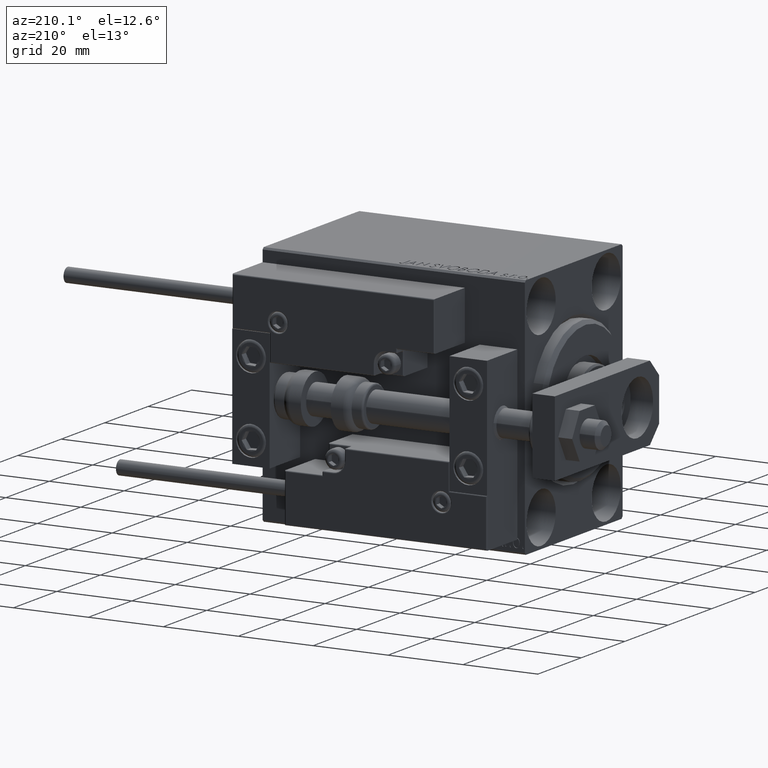
[diagram: clean part render]
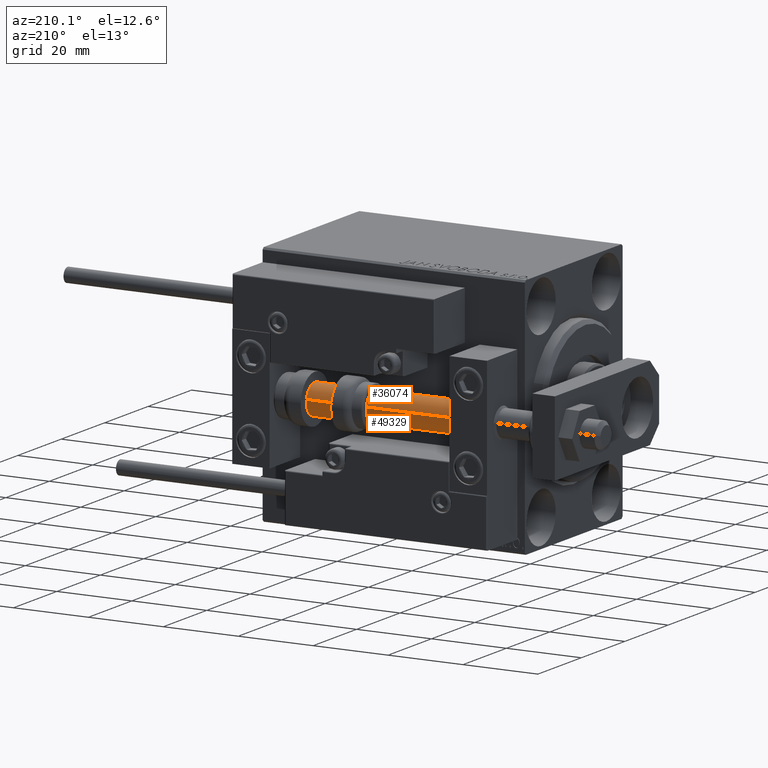
[diagram: same view with one multi-face feature highlighted, each face labeled with its STEP entity id]
A machine part, auxiliary view. The highlighted faces form ONE feature: a constant-radius fillet chain: 2 tangent blend faces with common blend radius 4 mm. The faces share edges in the B-rep.
Their STEP definitions:
[1] entity #36074 (Cylinder):
#150 = CARTESIAN_POINT ( 'NONE',  ( -4.000000000000000000, 0.000000000000000000, 2.000000000000029310 ) ) ;
#1936 = CARTESIAN_POINT ( 'NONE',  ( 0.000000000000000000, 0.000000000000000000, 70.00000000000000000 ) ) ;
#1945 = DIRECTION ( 'NONE',  ( -0.000000000000000000, -0.000000000000000000, -1.000000000000000000 ) ) ;
#5325 = EDGE_LOOP ( 'NONE', ( #43047, #48618, #14084, #49343 ) ) ;
#5996 = DIRECTION ( 'NONE',  ( 1.000000000000000000, 0.000000000000000000, 0.000000000000000000 ) ) ;
#9677 = DIRECTION ( 'NONE',  ( -1.000000000000000000, 0.000000000000000000, 0.000000000000000000 ) ) ;
#12072 = LINE ( 'NONE', #15633, #30948 ) ;
#13382 = AXIS2_PLACEMENT_3D ( 'NONE', #1936, #25589, #5996 ) ;
#13456 = EDGE_CURVE ( 'NONE', #47709, #35734, #18348, .T. ) ;
#14084 = ORIENTED_EDGE ( 'NONE', *, *, #13456, .T. ) ;
#15633 = CARTESIAN_POINT ( 'NONE',  ( -4.000000000000000000, 0.000000000000000000, 70.00000000000000000 ) ) ;
#15876 = AXIS2_PLACEMENT_3D ( 'NONE', #41964, #27198, #30783 ) ;
#17564 = CYLINDRICAL_SURFACE ( 'NONE', #42666, 4.000000000000000000 ) ;
#17728 = LINE ( 'NONE', #37044, #28191 ) ;
#18348 = CIRCLE ( 'NONE', #15876, 4.000000000000000000 ) ;
#25529 = EDGE_CURVE ( 'NONE', #34346, #35734, #12072, .T. ) ;
#25589 = DIRECTION ( 'NONE',  ( 0.000000000000000000, 0.000000000000000000, 1.000000000000000000 ) ) ;
#26838 = DIRECTION ( 'NONE',  ( -0.000000000000000000, -0.000000000000000000, -1.000000000000000000 ) ) ;
#27044 = VERTEX_POINT ( 'NONE', #39080 ) ;
#27186 = CIRCLE ( 'NONE', #13382, 4.000000000000000000 ) ;
#27198 = DIRECTION ( 'NONE',  ( -0.000000000000000000, -0.000000000000000000, 1.000000000000000000 ) ) ;
#28191 = VECTOR ( 'NONE', #1945, 1000.000000000000000 ) ;
#30028 = FACE_OUTER_BOUND ( 'NONE', #5325, .T. ) ;
#30783 = DIRECTION ( 'NONE',  ( 1.000000000000000000, 0.000000000000000000, 0.000000000000000000 ) ) ;
#30948 = VECTOR ( 'NONE', #26838, 1000.000000000000000 ) ;
#33067 = DIRECTION ( 'NONE',  ( -0.000000000000000000, -0.000000000000000000, -1.000000000000000000 ) ) ;
#33562 = CARTESIAN_POINT ( 'NONE',  ( 0.000000000000000000, 0.000000000000000000, 70.00000000000000000 ) ) ;
#34346 = VERTEX_POINT ( 'NONE', #46297 ) ;
#35734 = VERTEX_POINT ( 'NONE', #150 ) ;
#36074 = ADVANCED_FACE ( 'NONE', ( #30028 ), #17564, .T. ) ;
#37044 = CARTESIAN_POINT ( 'NONE',  ( 4.000000000000000000, 4.898587196589412829E-16, 70.00000000000000000 ) ) ;
#38047 = EDGE_CURVE ( 'NONE', #27044, #34346, #27186, .T. ) ;
#39078 = CARTESIAN_POINT ( 'NONE',  ( 4.000000000000000000, 4.898587196589412829E-16, 2.000000000000029310 ) ) ;
#39080 = CARTESIAN_POINT ( 'NONE',  ( 4.000000000000000000, 4.898587196589412829E-16, 70.00000000000000000 ) ) ;
#41964 = CARTESIAN_POINT ( 'NONE',  ( 0.000000000000000000, 0.000000000000000000, 2.000000000000029310 ) ) ;
#42666 = AXIS2_PLACEMENT_3D ( 'NONE', #33562, #33067, #9677 ) ;
#42829 = EDGE_CURVE ( 'NONE', #27044, #47709, #17728, .T. ) ;
#43047 = ORIENTED_EDGE ( 'NONE', *, *, #38047, .F. ) ;
#46297 = CARTESIAN_POINT ( 'NONE',  ( -4.000000000000000000, 0.000000000000000000, 70.00000000000000000 ) ) ;
#47709 = VERTEX_POINT ( 'NONE', #39078 ) ;
#48618 = ORIENTED_EDGE ( 'NONE', *, *, #42829, .T. ) ;
#49343 = ORIENTED_EDGE ( 'NONE', *, *, #25529, .F. ) ;
[2] entity #49329 (Cylinder):
#150 = CARTESIAN_POINT ( 'NONE',  ( -4.000000000000000000, 0.000000000000000000, 2.000000000000029310 ) ) ;
#1945 = DIRECTION ( 'NONE',  ( -0.000000000000000000, -0.000000000000000000, -1.000000000000000000 ) ) ;
#6321 = DIRECTION ( 'NONE',  ( 0.000000000000000000, 0.000000000000000000, 1.000000000000000000 ) ) ;
#6773 = CIRCLE ( 'NONE', #27089, 4.000000000000000000 ) ;
#12014 = DIRECTION ( 'NONE',  ( -1.000000000000000000, 0.000000000000000000, 0.000000000000000000 ) ) ;
#12072 = LINE ( 'NONE', #15633, #30948 ) ;
#12848 = DIRECTION ( 'NONE',  ( 1.000000000000000000, 0.000000000000000000, 0.000000000000000000 ) ) ;
#13703 = DIRECTION ( 'NONE',  ( 1.000000000000000000, 0.000000000000000000, 0.000000000000000000 ) ) ;
#15633 = CARTESIAN_POINT ( 'NONE',  ( -4.000000000000000000, 0.000000000000000000, 70.00000000000000000 ) ) ;
#16483 = AXIS2_PLACEMENT_3D ( 'NONE', #31677, #31432, #12848 ) ;
#17728 = LINE ( 'NONE', #37044, #28191 ) ;
#18075 = ORIENTED_EDGE ( 'NONE', *, *, #30393, .T. ) ;
#18107 = CIRCLE ( 'NONE', #16483, 4.000000000000000000 ) ;
#25101 = AXIS2_PLACEMENT_3D ( 'NONE', #34400, #35145, #12014 ) ;
#25529 = EDGE_CURVE ( 'NONE', #34346, #35734, #12072, .T. ) ;
#26838 = DIRECTION ( 'NONE',  ( -0.000000000000000000, -0.000000000000000000, -1.000000000000000000 ) ) ;
#27044 = VERTEX_POINT ( 'NONE', #39080 ) ;
#27089 = AXIS2_PLACEMENT_3D ( 'NONE', #37591, #6321, #13703 ) ;
#27275 = FACE_OUTER_BOUND ( 'NONE', #30935, .T. ) ;
#28191 = VECTOR ( 'NONE', #1945, 1000.000000000000000 ) ;
#30393 = EDGE_CURVE ( 'NONE', #35734, #47709, #18107, .T. ) ;
#30935 = EDGE_LOOP ( 'NONE', ( #48813, #41777, #34052, #18075 ) ) ;
#30948 = VECTOR ( 'NONE', #26838, 1000.000000000000000 ) ;
#31432 = DIRECTION ( 'NONE',  ( -0.000000000000000000, -0.000000000000000000, 1.000000000000000000 ) ) ;
#31677 = CARTESIAN_POINT ( 'NONE',  ( 0.000000000000000000, 0.000000000000000000, 2.000000000000029310 ) ) ;
#31740 = EDGE_CURVE ( 'NONE', #34346, #27044, #6773, .T. ) ;
#34052 = ORIENTED_EDGE ( 'NONE', *, *, #25529, .T. ) ;
#34346 = VERTEX_POINT ( 'NONE', #46297 ) ;
#34400 = CARTESIAN_POINT ( 'NONE',  ( 0.000000000000000000, 0.000000000000000000, 70.00000000000000000 ) ) ;
#35145 = DIRECTION ( 'NONE',  ( -0.000000000000000000, -0.000000000000000000, -1.000000000000000000 ) ) ;
#35734 = VERTEX_POINT ( 'NONE', #150 ) ;
#37044 = CARTESIAN_POINT ( 'NONE',  ( 4.000000000000000000, 4.898587196589412829E-16, 70.00000000000000000 ) ) ;
#37591 = CARTESIAN_POINT ( 'NONE',  ( 0.000000000000000000, 0.000000000000000000, 70.00000000000000000 ) ) ;
#39078 = CARTESIAN_POINT ( 'NONE',  ( 4.000000000000000000, 4.898587196589412829E-16, 2.000000000000029310 ) ) ;
#39080 = CARTESIAN_POINT ( 'NONE',  ( 4.000000000000000000, 4.898587196589412829E-16, 70.00000000000000000 ) ) ;
#41777 = ORIENTED_EDGE ( 'NONE', *, *, #31740, .F. ) ;
#42829 = EDGE_CURVE ( 'NONE', #27044, #47709, #17728, .T. ) ;
#46297 = CARTESIAN_POINT ( 'NONE',  ( -4.000000000000000000, 0.000000000000000000, 70.00000000000000000 ) ) ;
#46881 = CYLINDRICAL_SURFACE ( 'NONE', #25101, 4.000000000000000000 ) ;
#47709 = VERTEX_POINT ( 'NONE', #39078 ) ;
#48813 = ORIENTED_EDGE ( 'NONE', *, *, #42829, .F. ) ;
#49329 = ADVANCED_FACE ( 'NONE', ( #27275 ), #46881, .T. ) ;